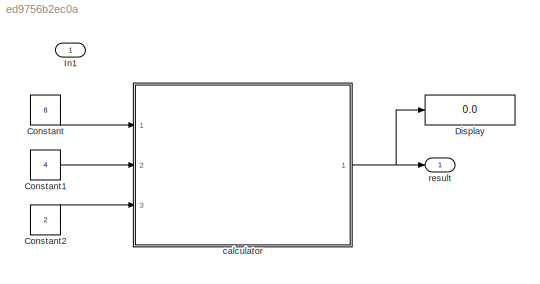
MODEL slx_ed9756b2ec0a
KIND model
CONFIG AbsTol = auto
CONFIG EnableMultiTasking = off
CONFIG FixedStep = auto
CONFIG MaxStep = auto
CONFIG MinStep = auto
CONFIG RelTol = 1e-3
CONFIG SampleTimeConstraint = Unconstrained
CONFIG SolverName = VariableStepAuto
CONFIG StartTime = 0.0
CONFIG StopTime = 10.0
BLOCK [Constant] Constant
  OutDataTypeStr = int64
  Value = 8
BLOCK [Constant] Constant1
  OutDataTypeStr = int64
  Value = 4
BLOCK [Constant] Constant2
  OutDataTypeStr = uint8
  Value = 2
BLOCK [Display] Display
  Decimation = 1
  Ports = [1]
BLOCK [Inport] In1
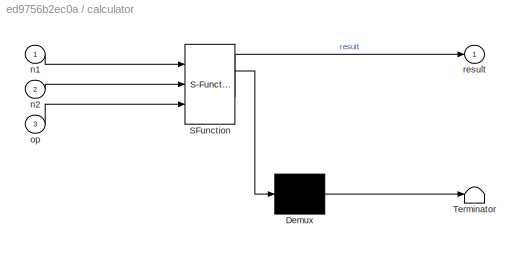
BLOCK [SubSystem] calculator
  ErrorFcn = Stateflow.Translate.translate
  PermitHierarchicalResolution = ExplicitOnly
  Ports = [3, 1]
  RequestExecContextInheritance = off
  SFBlockType = Chart
  TreatAsAtomicUnit = on
BLOCK [Demux] calculator/ Demux 
  Outputs = 1
  Ports = [1, 1]
BLOCK [S-Function] calculator/ SFunction 
  EnableBusSupport = on
  FunctionName = sf_sfun
  PortCounts = [3 2]
  Ports = [3, 2]
  SFcnIsStateOwnerBlock = off
  SFunctionDeploymentMode = off
  Tag = Stateflow S-Function 3
BLOCK [Terminator] calculator/ Terminator 
BLOCK [Inport] calculator/n1
BLOCK [Inport] calculator/n2
  Port = 2
BLOCK [Inport] calculator/op
  Port = 3
BLOCK [Outport] calculator/result
BLOCK [Outport] result
LINE Constant1:1 -> calculator:2
LINE Constant2:1 -> calculator:3
LINE Constant:1 -> calculator:1
NET calculator:1 -> Display:1, result:1
note: NET lines group one-source signal fan-out (src -> all destinations, sorted); 1:1 wires keep LINE
CHART calculator states=4 transitions=26
  STATE_LABEL 'add(num1,num2)'
  STATE_LABEL '{result = (num1+num2);}'
  STATE_LABEL 'sub(num1, num2)'
  STATE_LABEL '{result = num1 - num2;}'
  STATE_LABEL 'mult(num1,num2)'
  STATE_LABEL '{result = num1 * num2;}'
  STATE_LABEL 'div(num1,num2)'
  STATE_LABEL '[num2 == 0]'
  STATE_LABEL '{result = num1/num2;}'
  STATE_LABEL '{result = -1;}'
CHART  states=0 transitions=0
